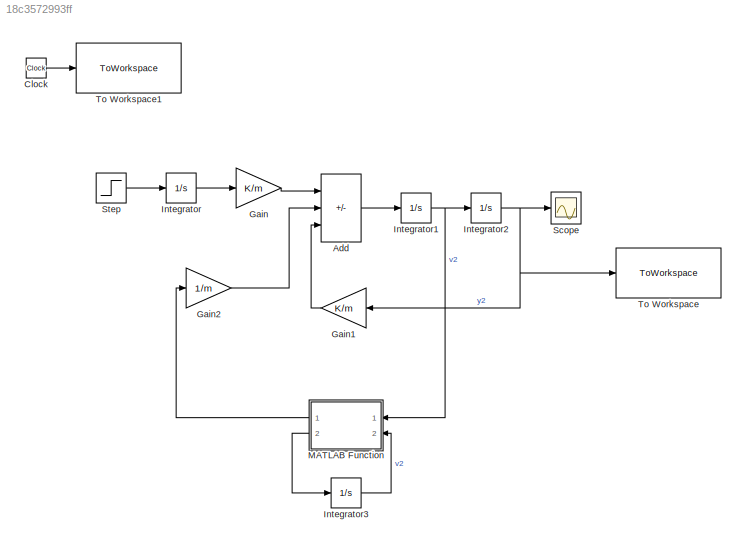
MODEL slx_18c3572993ff
KIND model
CONFIG AbsTol = auto
CONFIG EnableMultiTasking = off
CONFIG FixedStep = auto
CONFIG MaxStep = auto
CONFIG MinStep = auto
CONFIG RelTol = 1e-3
CONFIG SampleTimeConstraint = Unconstrained
CONFIG SolverName = VariableStepAuto
CONFIG StartTime = 0.0
CONFIG StopTime = T
BLOCK [Sum] Add
  IconShape = rectangular
  Inputs = +--
  Ports = [3, 1]
BLOCK [Clock] Clock
BLOCK [Gain] Gain
  Gain = K/m
BLOCK [Gain] Gain1
  Gain = K/m
BLOCK [Gain] Gain2
  Gain = 1/m
BLOCK [Integrator] Integrator
  Ports = [1, 1]
BLOCK [Integrator] Integrator1
  Ports = [1, 1]
BLOCK [Integrator] Integrator2
  Ports = [1, 1]
BLOCK [Integrator] Integrator3
  Ports = [1, 1]
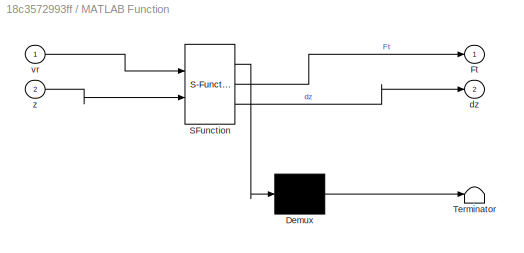
BLOCK [SubSystem] MATLAB Function
  ErrorFcn = Stateflow.Translate.translate
  PermitHierarchicalResolution = ExplicitOnly
  Ports = [2, 2]
  RequestExecContextInheritance = off
  SFBlockType = MATLAB Function
  TreatAsAtomicUnit = on
BLOCK [Demux] MATLAB Function/ Demux 
  Outputs = 1
  Ports = [1, 1]
BLOCK [S-Function] MATLAB Function/ SFunction 
  EnableBusSupport = on
  FunctionName = sf_sfun
  PortCounts = [2 3]
  Ports = [2, 3]
  SFcnIsStateOwnerBlock = off
  SFunctionDeploymentMode = off
  Tag = Stateflow S-Function 2
BLOCK [Terminator] MATLAB Function/ Terminator 
BLOCK [Outport] MATLAB Function/Ft
BLOCK [Outport] MATLAB Function/dz
  Port = 2
BLOCK [Inport] MATLAB Function/vr
BLOCK [Inport] MATLAB Function/z
  Port = 2
BLOCK [Scope] Scope
  Floating = off
  NumInputPorts = 1
  Ports = [1]
  ScopeSpecificationString = Simulink.scopes.TimeScopeBlockCfg('CurrentConfiguration', extmgr.ConfigurationSet(extmgr.Configuration('Core','General UI',true),extmgr.Configuration('Core','Source UI',true),extmgr.Configuration('Sources','WiredSimulink',true),extmgr.Configuration('Visuals','Time Domain',true,'SerializedDisplays',{struct('MinYLimReal','-0.00103','MaxYLimReal','0.0093','YLabelReal','','MinYLimMag','0.00000','MaxYL...<+1348ch>
BLOCK [Step] Step
  After = vu
  SampleTime = 0
  Time = 0
BLOCK [ToWorkspace] To Workspace
  FixptAsFi = on
  MaxDataPoints = inf
  Ports = [1]
  SampleTime = -1
  VariableName = y2
BLOCK [ToWorkspace] To Workspace1
  FixptAsFi = on
  MaxDataPoints = inf
  Ports = [1]
  SampleTime = -1
  VariableName = t
LINE Add:1 -> Integrator1:1
LINE Clock:1 -> To Workspace1:1
LINE Gain1:1 -> Add:3
LINE Gain2:1 -> Add:2
LINE Gain:1 -> Add:1
NET Integrator1:1 -> Integrator2:1, MATLAB Function:1
NET Integrator2:1 -> Gain1:1, Scope:1, To Workspace:1
LINE Integrator3:1 -> MATLAB Function:2
LINE Integrator:1 -> Gain:1
LINE MATLAB Function:1 -> Gain2:1
LINE MATLAB Function:2 -> Integrator3:1
LINE Step:1 -> Integrator:1
note: NET lines group one-source signal fan-out (src -> all destinations, sorted); 1:1 wires keep LINE
CHART MATLAB Function states=1 transitions=1
  STATE_LABEL 'eML_blk_kernel()'
  STATE_LABEL 'SCRIPT:\nfunction [Ft, dz] = trenje(vr, z)\na = 0.25;\nsigma1 = 30;\nsigma0 = 2e4;\nz0 = 1e-5;\n\nif (vr > 0 && z >= z0) || (vr < 0 && z <= -z0)\n    dz = 0;\nelse\n    dz = vr;\nend\n\nif abs(z) <= z0\n    Ft = sigma0*(1 + a)*z + sigma1*dz;\nelse\n    Ft = sigma0*z0*sign(z);\nend\n\n\nend\n'
CHART  states=0 transitions=0
